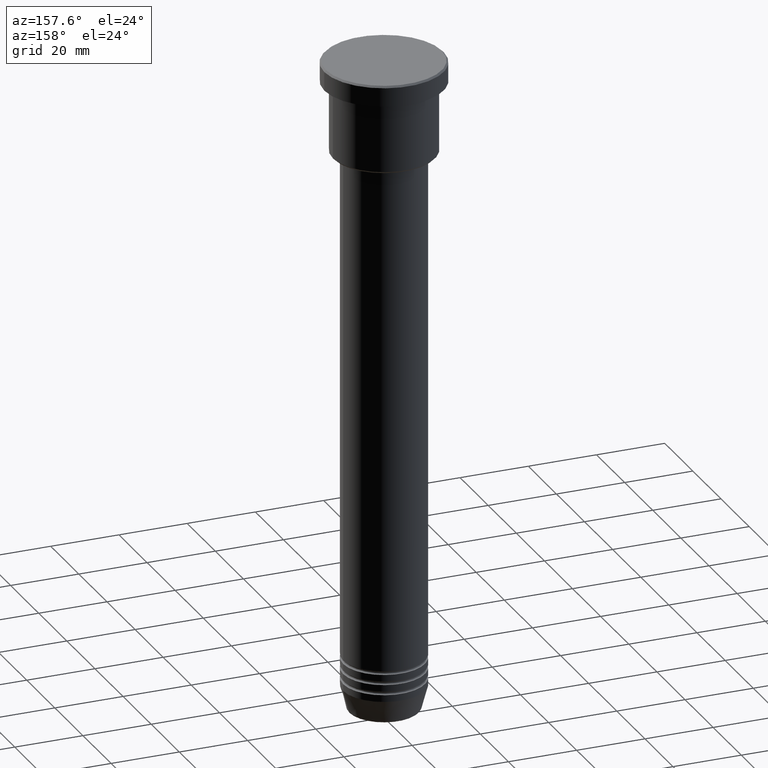
[diagram: clean part render]
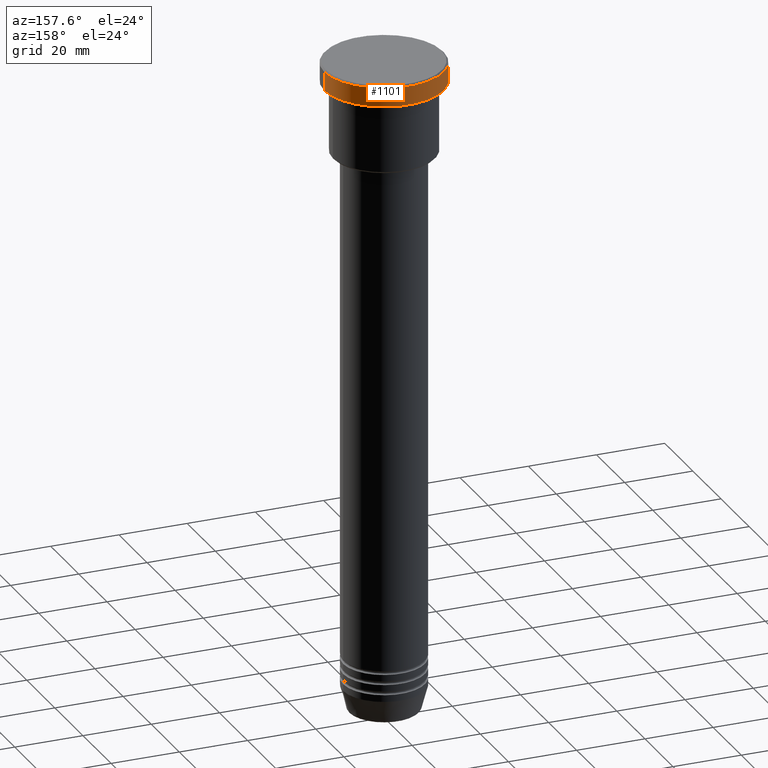
[diagram: same view with one face highlighted and labeled with its STEP entity id]
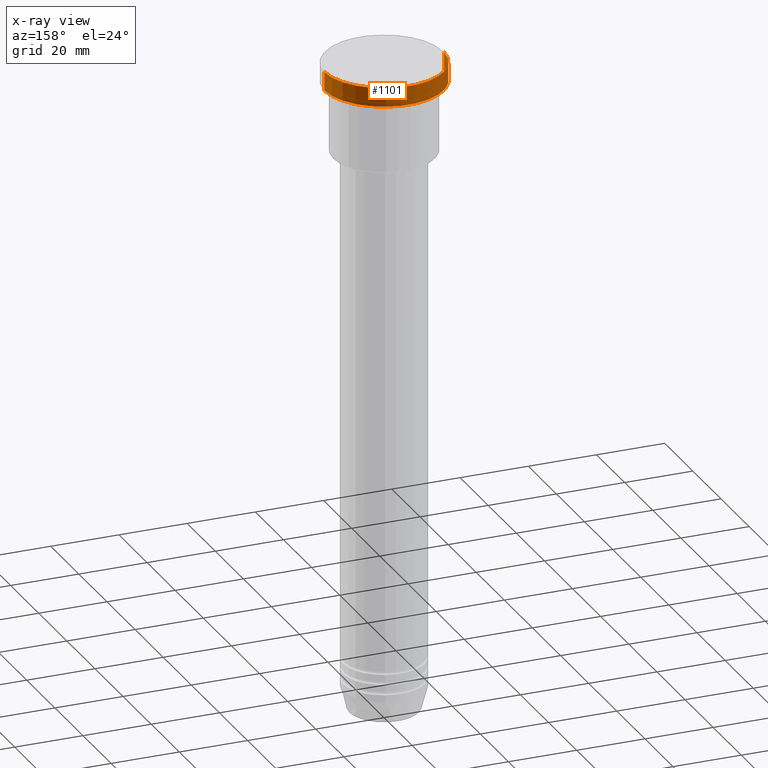
[diagram: x-ray of the same camera — body ghosted, the highlighted face saturated]
A machine part, auxiliary view. The second image highlights one B-rep face of the part: STEP entity #1101.
The next image is the same camera in x-ray: the body ghosted, the highlighted face saturated — about 0% of this face is hidden behind the body in this view.
In plain terms, the highlighted cylindrical surface (partial cylindrical patch) has radius 17.5 mm, axis along (-0, -0, 1).
Its self-contained STEP definition (entity closure, byte-faithful):
#23 = DIRECTION ( 'NONE',  ( 0.000000000000000000, 0.000000000000000000, -1.000000000000000000 ) ) ;
#32 = CARTESIAN_POINT ( 'NONE',  ( 0.000000000000000000, 0.000000000000000000, -0.5000000000000005551 ) ) ;
#113 = EDGE_CURVE ( 'NONE', #862, #390, #427, .T. ) ;
#114 = DIRECTION ( 'NONE',  ( 1.000000000000000000, 0.000000000000000000, 0.000000000000000000 ) ) ;
#141 = ORIENTED_EDGE ( 'NONE', *, *, #248, .F. ) ;
#170 = AXIS2_PLACEMENT_3D ( 'NONE', #227, #674, #489 ) ;
#218 = CARTESIAN_POINT ( 'NONE',  ( 0.000000000000000000, 0.000000000000000000, -5.999999999999995559 ) ) ;
#227 = CARTESIAN_POINT ( 'NONE',  ( 0.000000000000000000, 0.000000000000000000, 0.000000000000000000 ) ) ;
#236 = EDGE_LOOP ( 'NONE', ( #654, #1094, #1071, #141 ) ) ;
#248 = EDGE_CURVE ( 'NONE', #938, #968, #1134, .T. ) ;
#261 = VECTOR ( 'NONE', #694, 1000.000000000000000 ) ;
#340 = CARTESIAN_POINT ( 'NONE',  ( 17.50000000000000000, 0.000000000000000000, -5.999999999999995559 ) ) ;
#386 = CYLINDRICAL_SURFACE ( 'NONE', #170, 17.50000000000000000 ) ;
#390 = VERTEX_POINT ( 'NONE', #761 ) ;
#399 = CARTESIAN_POINT ( 'NONE',  ( 17.50000000000000000, 0.000000000000000000, 0.000000000000000000 ) ) ;
#427 = LINE ( 'NONE', #782, #530 ) ;
#489 = DIRECTION ( 'NONE',  ( 1.000000000000000000, 0.000000000000000000, 0.000000000000000000 ) ) ;
#517 = AXIS2_PLACEMENT_3D ( 'NONE', #32, #23, #114 ) ;
#530 = VECTOR ( 'NONE', #1010, 1000.000000000000000 ) ;
#654 = ORIENTED_EDGE ( 'NONE', *, *, #736, .T. ) ;
#674 = DIRECTION ( 'NONE',  ( -0.000000000000000000, -0.000000000000000000, 1.000000000000000000 ) ) ;
#685 = FACE_OUTER_BOUND ( 'NONE', #236, .T. ) ;
#694 = DIRECTION ( 'NONE',  ( -0.000000000000000000, -0.000000000000000000, 1.000000000000000000 ) ) ;
#736 = EDGE_CURVE ( 'NONE', #938, #862, #807, .T. ) ;
#761 = CARTESIAN_POINT ( 'NONE',  ( -17.50000000000000000, 2.143131898507868248E-15, -0.5000000000000005551 ) ) ;
#782 = CARTESIAN_POINT ( 'NONE',  ( -17.50000000000000000, 2.143131898507868248E-15, 0.000000000000000000 ) ) ;
#807 = CIRCLE ( 'NONE', #1160, 17.50000000000000000 ) ;
#862 = VERTEX_POINT ( 'NONE', #989 ) ;
#936 = CARTESIAN_POINT ( 'NONE',  ( 17.50000000000000000, 0.000000000000000000, -0.5000000000000005551 ) ) ;
#938 = VERTEX_POINT ( 'NONE', #340 ) ;
#948 = DIRECTION ( 'NONE',  ( 1.000000000000000000, 0.000000000000000000, 0.000000000000000000 ) ) ;
#968 = VERTEX_POINT ( 'NONE', #936 ) ;
#989 = CARTESIAN_POINT ( 'NONE',  ( -17.50000000000000000, 2.143131898507868248E-15, -5.999999999999995559 ) ) ;
#1010 = DIRECTION ( 'NONE',  ( -0.000000000000000000, -0.000000000000000000, 1.000000000000000000 ) ) ;
#1030 = CIRCLE ( 'NONE', #517, 17.50000000000000000 ) ;
#1071 = ORIENTED_EDGE ( 'NONE', *, *, #1121, .T. ) ;
#1094 = ORIENTED_EDGE ( 'NONE', *, *, #113, .T. ) ;
#1101 = ADVANCED_FACE ( 'NONE', ( #685 ), #386, .T. ) ;
#1121 = EDGE_CURVE ( 'NONE', #390, #968, #1030, .T. ) ;
#1134 = LINE ( 'NONE', #399, #261 ) ;
#1138 = DIRECTION ( 'NONE',  ( -0.000000000000000000, -0.000000000000000000, 1.000000000000000000 ) ) ;
#1160 = AXIS2_PLACEMENT_3D ( 'NONE', #218, #1138, #948 ) ;